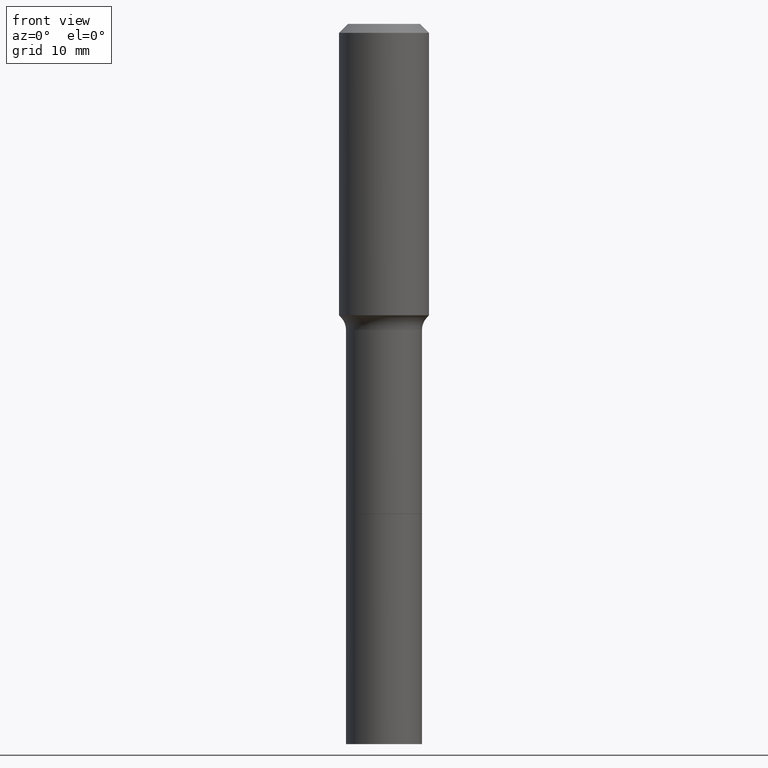
[diagram: clean part render]
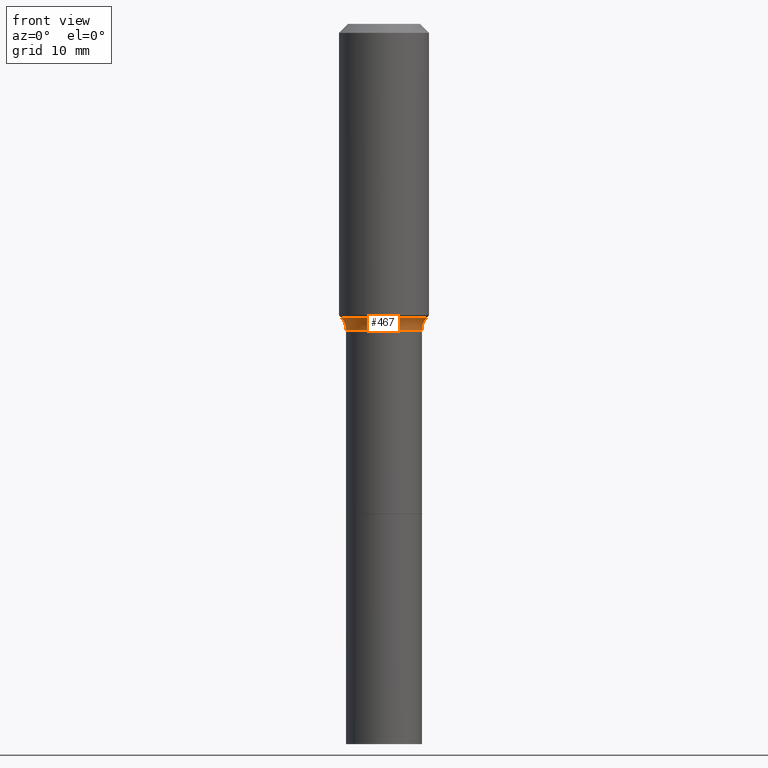
[diagram: same view with one face highlighted and labeled with its STEP entity id]
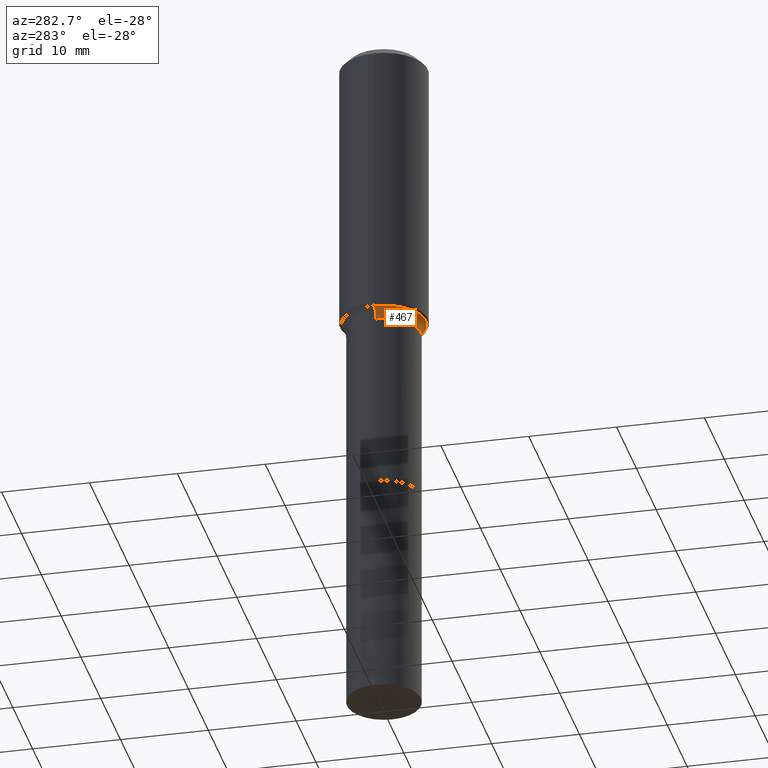
[diagram: same view with one face highlighted and labeled with its STEP entity id]
A machine part, front view. The second image highlights one B-rep face of the part: STEP entity #467.
A second angle (auxiliary view) of the same face is appended — the face is thin or edge-on in the first view.
In plain terms, the highlighted toroidal blend (fillet) surface has major radius 6.2484 mm and minor (blend) radius 2.032 mm.
Its self-contained STEP definition (entity closure, byte-faithful):
#3 = ORIENTED_EDGE ( 'NONE', *, *, #239, .T. ) ;
#5 = CARTESIAN_POINT ( 'NONE',  ( 3.273504543959424474E-29, -4.673696920175435525E-15, -1.338600000000000234 ) ) ;
#27 = DIRECTION ( 'NONE',  ( 7.105427357601001859E-15, 1.000000000000000000, -3.491481338843145583E-15 ) ) ;
#30 = CIRCLE ( 'NONE', #317, 0.1874917038704663474 ) ;
#71 = CARTESIAN_POINT ( 'NONE',  ( -0.2459999999999999409, -2.925761790205589488E-15, -1.338600000000000234 ) ) ;
#96 = CARTESIAN_POINT ( 'NONE',  ( -0.1874917038704663752, -3.150993474388610036E-15, -1.284040131195000267 ) ) ;
#102 = AXIS2_PLACEMENT_3D ( 'NONE', #112, #429, #462 ) ;
#105 = DIRECTION ( 'NONE',  ( -1.000000000000000000, 7.105427357601005014E-15, 0.000000000000000000 ) ) ;
#112 = CARTESIAN_POINT ( 'NONE',  ( 0.2459999999999999409, -6.391505738886256568E-15, -1.338600000000000234 ) ) ;
#160 = ORIENTED_EDGE ( 'NONE', *, *, #253, .F. ) ;
#161 = DIRECTION ( 'NONE',  ( 1.000000000000000000, -6.982962677686266711E-15, 4.883557194083112340E-29 ) ) ;
#169 = FACE_OUTER_BOUND ( 'NONE', #379, .T. ) ;
#206 = DIRECTION ( 'NONE',  ( -2.445468806185136597E-29, 3.491481338843145583E-15, 1.000000000000000000 ) ) ;
#223 = CARTESIAN_POINT ( 'NONE',  ( 3.140080086727243021E-29, -4.483202156393047465E-15, -1.284040131195000267 ) ) ;
#224 = EDGE_CURVE ( 'NONE', #459, #404, #476, .T. ) ;
#232 = CIRCLE ( 'NONE', #394, 0.08000000000000007105 ) ;
#234 = ORIENTED_EDGE ( 'NONE', *, *, #331, .T. ) ;
#239 = EDGE_CURVE ( 'NONE', #489, #515, #232, .T. ) ;
#250 = CARTESIAN_POINT ( 'NONE',  ( 0.1659999999999999254, -5.832868724671354916E-15, -1.338600000000000234 ) ) ;
#253 = EDGE_CURVE ( 'NONE', #489, #459, #30, .T. ) ;
#264 = TOROIDAL_SURFACE ( 'NONE', #277, 0.2459999999999999409, 0.08000000000000008493 ) ;
#268 = CARTESIAN_POINT ( 'NONE',  ( -0.1659999999999999254, -4.895152866024481976E-15, -1.338600000000000234 ) ) ;
#277 = AXIS2_PLACEMENT_3D ( 'NONE', #5, #206, #161 ) ;
#310 = DIRECTION ( 'NONE',  ( 1.000000000000000000, -6.982962677686265922E-15, 0.000000000000000000 ) ) ;
#317 = AXIS2_PLACEMENT_3D ( 'NONE', #223, #386, #388 ) ;
#318 = AXIS2_PLACEMENT_3D ( 'NONE', #343, #502, #310 ) ;
#331 = EDGE_CURVE ( 'NONE', #515, #404, #336, .T. ) ;
#336 = CIRCLE ( 'NONE', #318, 0.1659999999999999254 ) ;
#343 = CARTESIAN_POINT ( 'NONE',  ( 3.273504543959424474E-29, -4.673696920175435525E-15, -1.338600000000000234 ) ) ;
#361 = ORIENTED_EDGE ( 'NONE', *, *, #224, .F. ) ;
#379 = EDGE_LOOP ( 'NONE', ( #160, #3, #234, #361 ) ) ;
#386 = DIRECTION ( 'NONE',  ( -2.445468806185136597E-29, 3.491481338843145583E-15, 1.000000000000000000 ) ) ;
#388 = DIRECTION ( 'NONE',  ( 1.000000000000000000, -6.982962677686266711E-15, 0.000000000000000000 ) ) ;
#394 = AXIS2_PLACEMENT_3D ( 'NONE', #71, #27, #105 ) ;
#404 = VERTEX_POINT ( 'NONE', #250 ) ;
#408 = CARTESIAN_POINT ( 'NONE',  ( 0.1874917038704663752, -5.792449726896320379E-15, -1.284040131195000267 ) ) ;
#429 = DIRECTION ( 'NONE',  ( -6.982962677686266711E-15, -1.000000000000000000, 3.491481338843145583E-15 ) ) ;
#459 = VERTEX_POINT ( 'NONE', #408 ) ;
#462 = DIRECTION ( 'NONE',  ( 1.000000000000000000, -6.982962677686265922E-15, 0.000000000000000000 ) ) ;
#467 = ADVANCED_FACE ( 'NONE', ( #169 ), #264, .F. ) ;
#476 = CIRCLE ( 'NONE', #102, 0.08000000000000007105 ) ;
#489 = VERTEX_POINT ( 'NONE', #96 ) ;
#502 = DIRECTION ( 'NONE',  ( -2.445468806185136597E-29, 3.491481338843145583E-15, 1.000000000000000000 ) ) ;
#515 = VERTEX_POINT ( 'NONE', #268 ) ;